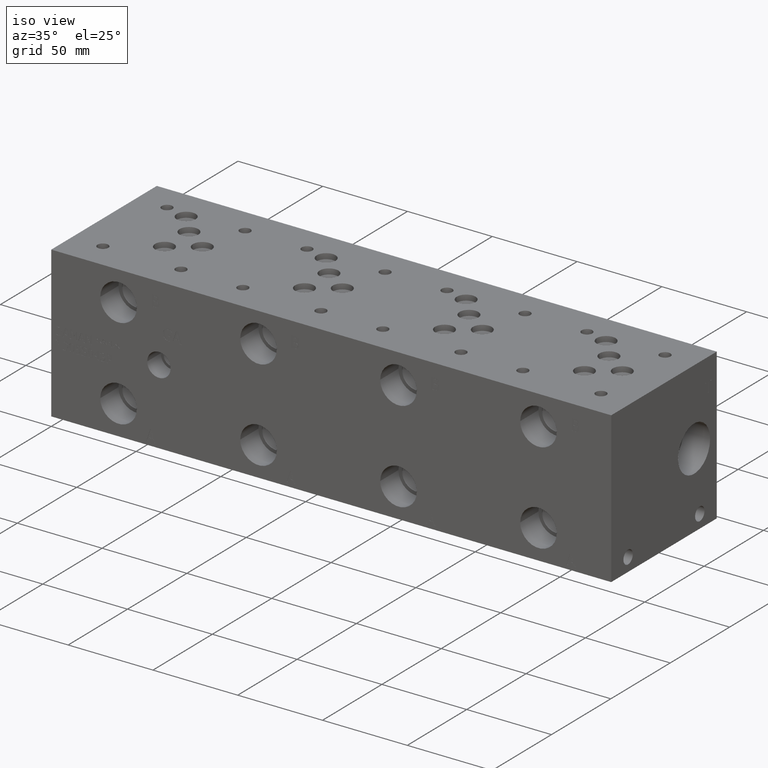
[diagram: clean part render]
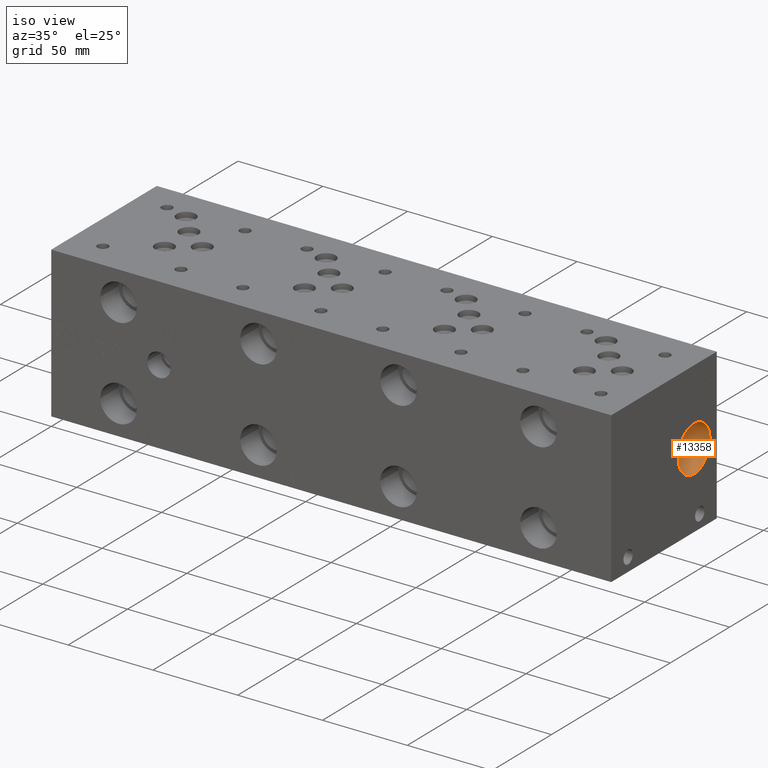
[diagram: same view with one face highlighted and labeled with its STEP entity id]
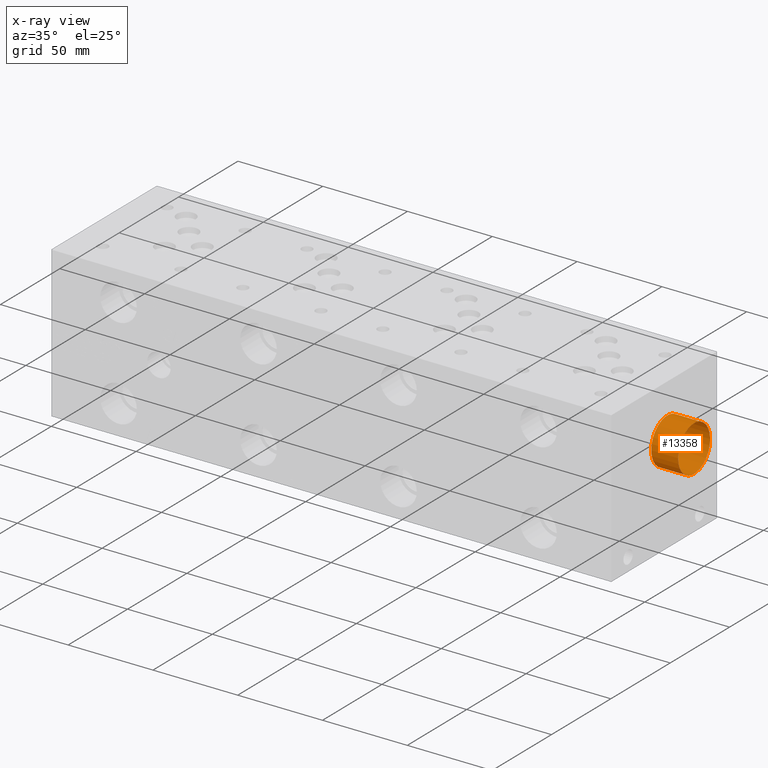
[diagram: x-ray of the same camera — body ghosted, the highlighted face saturated]
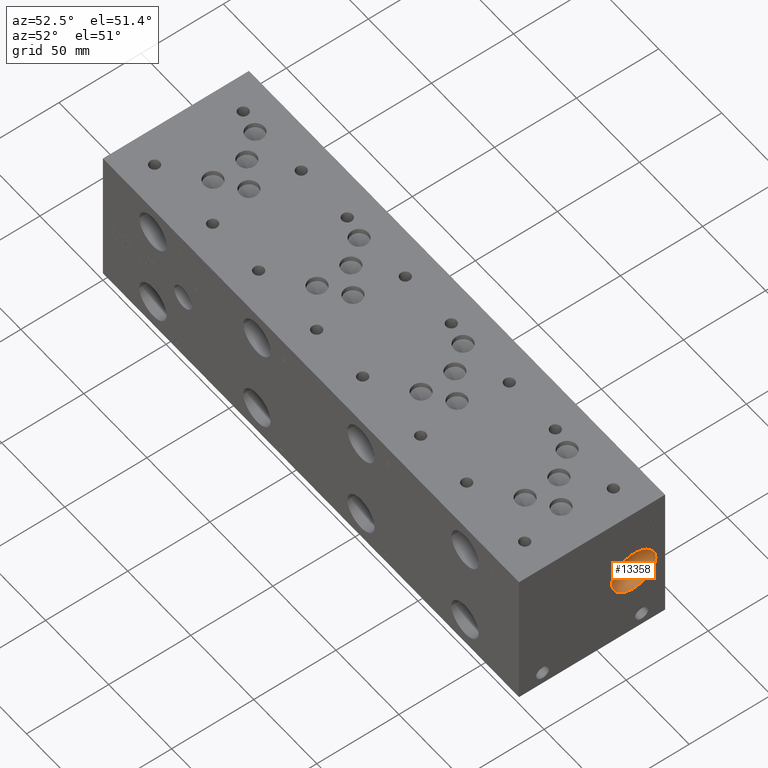
[diagram: same view with one face highlighted and labeled with its STEP entity id]
A machine part, iso view. The second image highlights one B-rep face of the part: STEP entity #13358.
The next image is the same camera in x-ray: the body ghosted, the highlighted face saturated — about 0% of this face is hidden behind the body in this view.
A second angle (auxiliary view) of the same face is appended — the face is thin or edge-on in the first view.
In plain terms, the highlighted cylindrical surface (bore or boss wall) has radius 13.462 mm, axis along (1, 0, 0).
Its self-contained STEP definition (entity closure, byte-faithful):
#14=CYLINDRICAL_SURFACE('',#13921,13.462);
#165=CIRCLE('',#13918,13.462);
#166=CIRCLE('',#13919,13.462);
#168=CIRCLE('',#13922,13.462);
#169=CIRCLE('',#13923,13.462);
#1606=FACE_OUTER_BOUND('',#2364,.T.);
#2364=EDGE_LOOP('',(#11103,#11104,#11105,#11106,#11107,#11108));
#3690=LINE('',#22441,#4919);
#4919=VECTOR('',#16219,13.462);
#6041=VERTEX_POINT('',#22430);
#6042=VERTEX_POINT('',#22431);
#6044=VERTEX_POINT('',#22437);
#6045=VERTEX_POINT('',#22438);
#7818=EDGE_CURVE('',#6041,#6042,#165,.T.);
#7819=EDGE_CURVE('',#6042,#6041,#166,.T.);
#7821=EDGE_CURVE('',#6044,#6045,#168,.T.);
#7822=EDGE_CURVE('',#6045,#6044,#169,.T.);
#7823=EDGE_CURVE('',#6045,#6042,#3690,.T.);
#11103=ORIENTED_EDGE('',*,*,#7821,.F.);
#11104=ORIENTED_EDGE('',*,*,#7822,.F.);
#11105=ORIENTED_EDGE('',*,*,#7823,.T.);
#11106=ORIENTED_EDGE('',*,*,#7818,.F.);
#11107=ORIENTED_EDGE('',*,*,#7819,.F.);
#11108=ORIENTED_EDGE('',*,*,#7823,.F.);
#13358=ADVANCED_FACE('',(#1606),#14,.F.);
#13918=AXIS2_PLACEMENT_3D('',#22432,#16207,#16208);
#13919=AXIS2_PLACEMENT_3D('',#22433,#16209,#16210);
#13921=AXIS2_PLACEMENT_3D('',#22436,#16213,#16214);
#13922=AXIS2_PLACEMENT_3D('',#22439,#16215,#16216);
#13923=AXIS2_PLACEMENT_3D('',#22440,#16217,#16218);
#16207=DIRECTION('center_axis',(1.,0.,0.));
#16208=DIRECTION('ref_axis',(0.,1.,0.));
#16209=DIRECTION('center_axis',(1.,0.,0.));
#16210=DIRECTION('ref_axis',(0.,1.,0.));
#16213=DIRECTION('center_axis',(1.,0.,0.));
#16214=DIRECTION('ref_axis',(0.,1.,0.));
#16215=DIRECTION('center_axis',(-1.,0.,0.));
#16216=DIRECTION('ref_axis',(0.,1.,0.));
#16217=DIRECTION('center_axis',(-1.,0.,0.));
#16218=DIRECTION('ref_axis',(0.,1.,0.));
#16219=DIRECTION('',(-1.,0.,0.));
#22430=CARTESIAN_POINT('',(314.3504,83.312,44.45));
#22431=CARTESIAN_POINT('',(314.3504,56.388,44.45));
#22432=CARTESIAN_POINT('Origin',(314.3504,69.85,44.45));
#22433=CARTESIAN_POINT('Origin',(314.3504,69.85,44.45));
#22436=CARTESIAN_POINT('Origin',(322.2752,69.85,44.45));
#22437=CARTESIAN_POINT('',(330.2,83.312,44.45));
#22438=CARTESIAN_POINT('',(330.2,56.388,44.45));
#22439=CARTESIAN_POINT('Origin',(330.2,69.85,44.45));
#22440=CARTESIAN_POINT('Origin',(330.2,69.85,44.45));
#22441=CARTESIAN_POINT('',(322.2752,56.388,44.45));